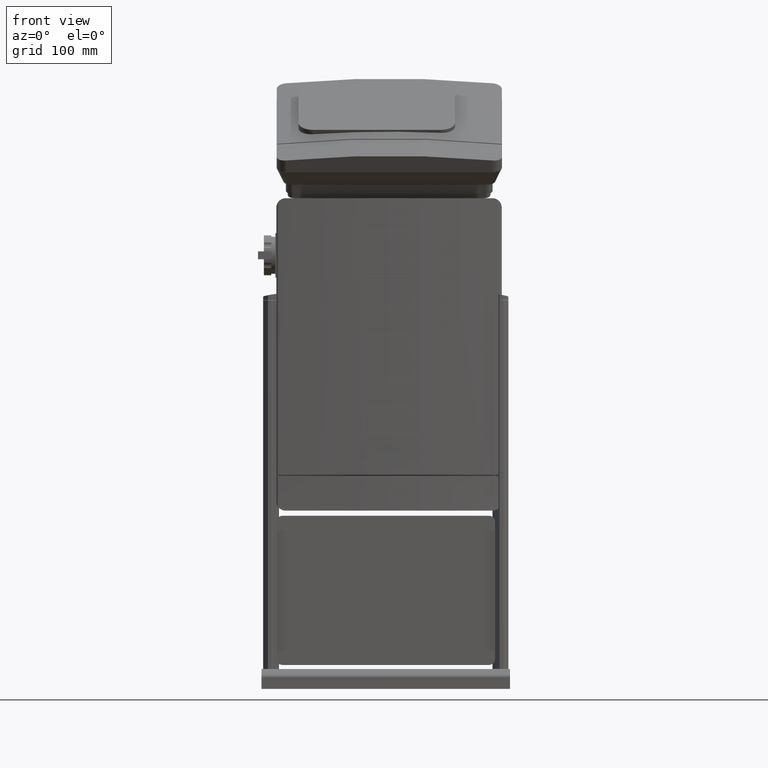
[diagram: clean part render]
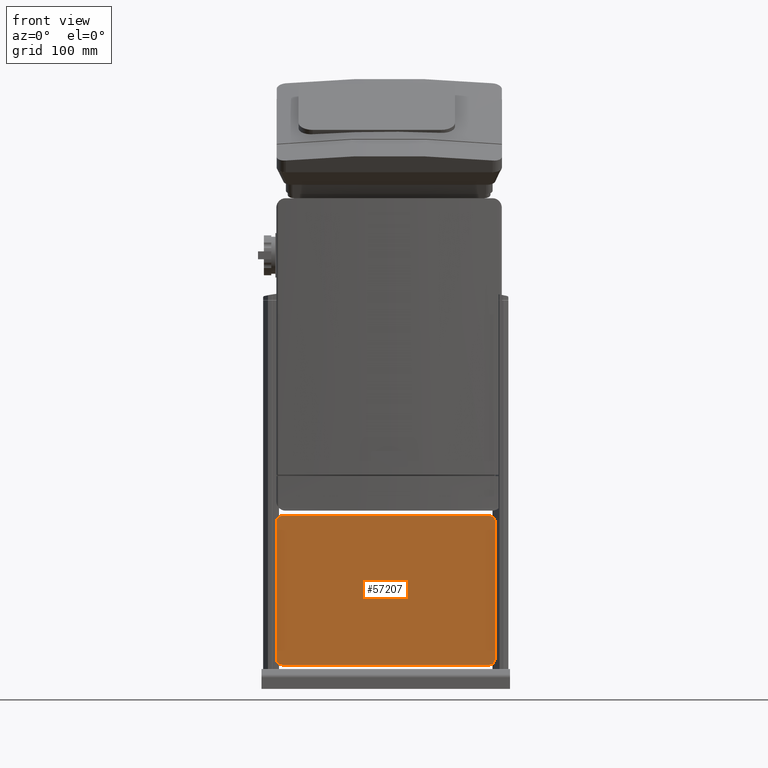
[diagram: same view with one face highlighted and labeled with its STEP entity id]
A machine part, front view. The second image highlights one B-rep face of the part: STEP entity #57207.
In plain terms, the highlighted face is a freeform B-spline surface patch.
Its self-contained STEP definition (entity closure, byte-faithful):
#56013=CARTESIAN_POINT('',(160.00000000005133,-341.50034369195248,221.09999590897723));
#56014=VERTEX_POINT('',#56013);
#56023=CARTESIAN_POINT('',(160.00000000005156,-341.50034369195248,14.099995908977235));
#56024=VERTEX_POINT('',#56023);
#56025=CARTESIAN_POINT('',(160.00000000005133,-341.50034369195248,221.09999590897723));
#56026=DIRECTION('',(0.0,0.0,-1.0));
#56027=VECTOR('',#56026,207.0);
#56028=LINE('',#56025,#56027);
#56029=EDGE_CURVE('',#56014,#56024,#56028,.T.);
#56121=CARTESIAN_POINT('',(-169.99999999994844,-341.50034369195225,14.099995908977007));
#56122=VERTEX_POINT('',#56121);
#56131=CARTESIAN_POINT('',(-169.99999999994867,-341.50034369195225,221.09999590897701));
#56132=VERTEX_POINT('',#56131);
#56133=CARTESIAN_POINT('',(-169.99999999994844,-341.50034369195225,14.099995908977007));
#56134=DIRECTION('',(0.0,0.0,1.0));
#56135=VECTOR('',#56134,207.0);
#56136=LINE('',#56133,#56135);
#56137=EDGE_CURVE('',#56122,#56132,#56136,.T.);
#56493=CARTESIAN_POINT('',(-160.99999999994844,-341.50034369195225,5.099995908977007));
#56494=VERTEX_POINT('',#56493);
#56501=CARTESIAN_POINT('',(-160.99999999994844,-341.50034369195225,14.099995908977007));
#56502=DIRECTION('',(0.0,1.0,0.0));
#56503=DIRECTION('',(1.0,0.0,0.0));
#56504=AXIS2_PLACEMENT_3D('',#56501,#56502,#56503);
#56505=CIRCLE('',#56504,9.0);
#56506=EDGE_CURVE('',#56494,#56122,#56505,.T.);
#56618=CARTESIAN_POINT('',(-160.99999999994867,-341.50034369195225,230.09999590897701));
#56619=VERTEX_POINT('',#56618);
#56620=CARTESIAN_POINT('',(-160.99999999994867,-341.50034369195225,221.09999590897701));
#56621=DIRECTION('',(0.0,1.0,0.0));
#56622=DIRECTION('',(1.0,0.0,0.0));
#56623=AXIS2_PLACEMENT_3D('',#56620,#56621,#56622);
#56624=CIRCLE('',#56623,9.0);
#56625=EDGE_CURVE('',#56132,#56619,#56624,.T.);
#56644=CARTESIAN_POINT('',(151.00000000005133,-341.50034369195248,230.09999590897723));
#56645=VERTEX_POINT('',#56644);
#56646=CARTESIAN_POINT('',(151.00000000005133,-341.50034369195248,230.09999590897723));
#56647=DIRECTION('',(-1.0,0.0,0.0));
#56648=VECTOR('',#56647,312.0);
#56649=LINE('',#56646,#56648);
#56650=EDGE_CURVE('',#56619,#56645,#56649,.F.);
#56669=CARTESIAN_POINT('',(151.00000000005133,-341.50034369195248,221.09999590897723));
#56670=DIRECTION('',(0.0,1.0,0.0));
#56671=DIRECTION('',(1.0,0.0,0.0));
#56672=AXIS2_PLACEMENT_3D('',#56669,#56670,#56671);
#56673=CIRCLE('',#56672,9.0);
#56674=EDGE_CURVE('',#56645,#56014,#56673,.T.);
#56685=CARTESIAN_POINT('',(151.00000000005156,-341.50034369195248,5.099995908977235));
#56686=VERTEX_POINT('',#56685);
#56687=CARTESIAN_POINT('',(151.00000000005156,-341.50034369195248,14.099995908977235));
#56688=DIRECTION('',(0.0,1.0,0.0));
#56689=DIRECTION('',(1.0,0.0,0.0));
#56690=AXIS2_PLACEMENT_3D('',#56687,#56688,#56689);
#56691=CIRCLE('',#56690,9.0);
#56692=EDGE_CURVE('',#56024,#56686,#56691,.T.);
#56711=CARTESIAN_POINT('',(-160.99999999994844,-341.50034369195225,5.099995908977007));
#56712=DIRECTION('',(1.0,0.0,0.0));
#56713=VECTOR('',#56712,312.0);
#56714=LINE('',#56711,#56713);
#56715=EDGE_CURVE('',#56686,#56494,#56714,.F.);
#57192=CARTESIAN_POINT('',(160.00000000005156,-341.50034369195248,230.09999590897723));
#57193=CARTESIAN_POINT('',(160.00000000005156,-341.50034369195248,5.099995908977007));
#57194=CARTESIAN_POINT('',(-169.99999999994867,-341.50034369195248,230.09999590897723));
#57195=CARTESIAN_POINT('',(-169.99999999994867,-341.50034369195248,5.099995908977007));
#57196=B_SPLINE_SURFACE_WITH_KNOTS('',1,1,((#57192,#57194),(#57193,#57195)),.UNSPECIFIED.,.F.,.F.,.U.,(2,2),(2,2),(0.0,225.00000000000023),(0.0,330.00000000000023),.UNSPECIFIED.);
#57197=ORIENTED_EDGE('',*,*,#56674,.F.);
#57198=ORIENTED_EDGE('',*,*,#56650,.F.);
#57199=ORIENTED_EDGE('',*,*,#56625,.F.);
#57200=ORIENTED_EDGE('',*,*,#56137,.F.);
#57201=ORIENTED_EDGE('',*,*,#56506,.F.);
#57202=ORIENTED_EDGE('',*,*,#56715,.F.);
#57203=ORIENTED_EDGE('',*,*,#56692,.F.);
#57204=ORIENTED_EDGE('',*,*,#56029,.F.);
#57205=EDGE_LOOP('',(#57197,#57198,#57199,#57200,#57201,#57202,#57203,#57204));
#57206=FACE_OUTER_BOUND('',#57205,.T.);
#57207=ADVANCED_FACE('',(#57206),#57196,.F.);